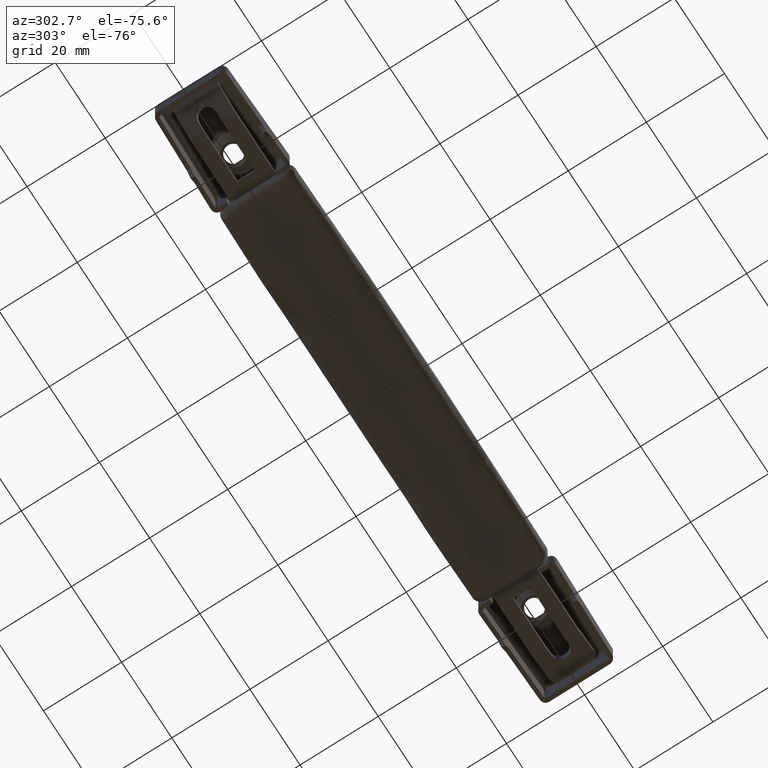
[diagram: clean part render]
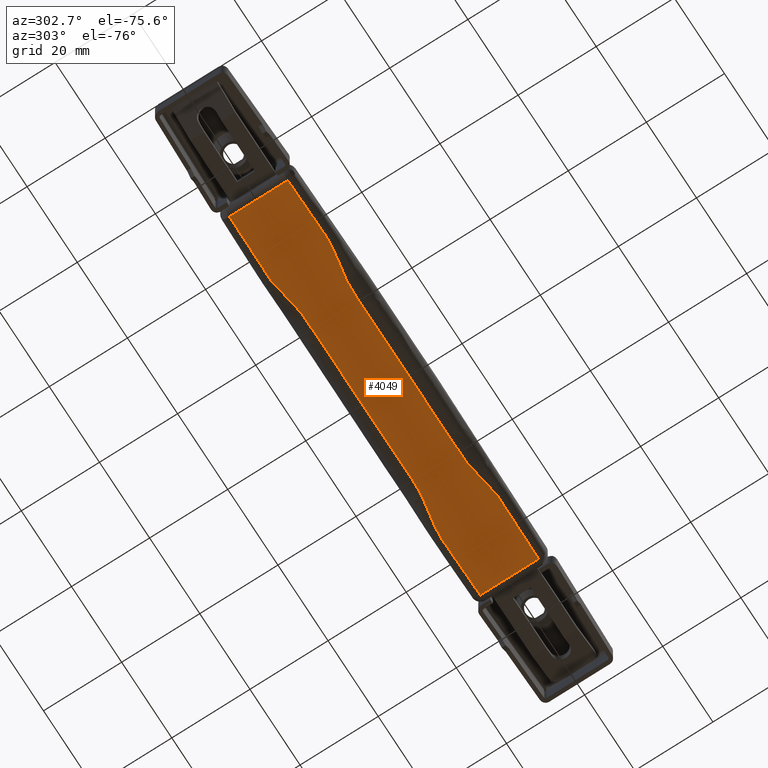
[diagram: same view with one face highlighted and labeled with its STEP entity id]
A machine part, auxiliary view. The second image highlights one B-rep face of the part: STEP entity #4049.
In plain terms, the highlighted face is a freeform B-spline surface patch.
Its self-contained STEP definition (entity closure, byte-faithful):
#2892=CARTESIAN_POINT('',(-49.999600000000001,7.453993043295670,0.0));
#2893=VERTEX_POINT('',#2892);
#3142=CARTESIAN_POINT('',(50.0,7.453984337407190,0.0));
#3143=VERTEX_POINT('',#3142);
#3157=CARTESIAN_POINT('',(-49.999600000000001,7.453993043295670,0.0));
#3158=CARTESIAN_POINT('',(-46.082928991246057,7.539208086076124,0.0));
#3159=CARTESIAN_POINT('',(-41.904920289410768,7.619755162427684,0.0));
#3160=CARTESIAN_POINT('',(-37.596150636058397,7.690959028298588,0.0));
#3161=CARTESIAN_POINT('',(-37.073887836700102,7.700303517321741,0.0));
#3162=CARTESIAN_POINT('',(-36.714884460127543,7.706293098118715,0.0));
#3163=CARTESIAN_POINT('',(-36.388609371978397,7.713118205272045,0.0));
#3164=CARTESIAN_POINT('',(-36.094864415919339,7.718813490124887,0.0));
#3165=CARTESIAN_POINT('',(-35.768481260680922,7.725904991689672,0.0));
#3166=CARTESIAN_POINT('',(-35.507222272392227,7.726733565481607,0.0));
#3167=CARTESIAN_POINT('',(-35.311391500971837,7.724147359225614,0.0));
#3168=CARTESIAN_POINT('',(-35.213453008181197,7.723104442542816,0.0));
#3169=CARTESIAN_POINT('',(-34.984992180252597,7.718221074084758,0.0));
#3170=CARTESIAN_POINT('',(-34.756585320890501,7.710679553695564,0.0));
#3171=CARTESIAN_POINT('',(-34.528339260255457,7.699441258498724,0.0));
#3172=CARTESIAN_POINT('',(-34.006561684482307,7.672844348710802,0.0));
#3173=CARTESIAN_POINT('',(-32.965474696383090,7.580821892244155,0.0));
#3174=CARTESIAN_POINT('',(-31.882361405524520,7.426980330677482,0.0));
#3175=CARTESIAN_POINT('',(-31.061045521274210,7.291449871780212,0.0));
#3176=CARTESIAN_POINT('',(-30.225589224968751,7.141651599526635,0.0));
#3177=CARTESIAN_POINT('',(-29.472122476308510,6.997029946890723,0.0));
#3178=CARTESIAN_POINT('',(-28.622701378124550,6.832335046995496,0.0));
#3179=CARTESIAN_POINT('',(-28.174198918358950,6.743842004210175,0.0));
#3180=CARTESIAN_POINT('',(-27.340855790086781,6.581991059518238,0.0));
#3181=CARTESIAN_POINT('',(-26.506560297864041,6.425768302655597,0.0));
#3182=CARTESIAN_POINT('',(-25.670180428295950,6.280859995471224,0.0));
#3183=CARTESIAN_POINT('',(-25.154200382278539,6.199495025730656,0.0));
#3184=CARTESIAN_POINT('',(-24.346601652047820,6.081898657462616,0.0));
#3185=CARTESIAN_POINT('',(-23.308368511579790,5.960830410483255,0.0));
#3186=CARTESIAN_POINT('',(-22.289246183072379,5.907132223337533,0.0));
#3187=CARTESIAN_POINT('',(-21.807818064606440,5.899904791173635,0.0));
#3188=CARTESIAN_POINT('',(-21.669133499526819,5.901023275988207,0.0));
#3189=CARTESIAN_POINT('',(-21.491600013791370,5.901136922805643,0.0));
#3190=CARTESIAN_POINT('',(-21.124333036237761,5.903951284595477,0.0));
#3191=CARTESIAN_POINT('',(-20.528531179184821,5.907147243308614,0.0));
#3192=CARTESIAN_POINT('',(-19.734811119997779,5.913922018008933,0.0));
#3193=CARTESIAN_POINT('',(-18.624793126276192,5.922465959983224,0.0));
#3194=CARTESIAN_POINT('',(-6.301015639243659,6.019578147753740,0.0));
#3195=CARTESIAN_POINT('',(6.774450400033462,6.019568517216327,0.0));
#3196=CARTESIAN_POINT('',(19.441022679260922,5.915991483347877,0.0));
#3197=CARTESIAN_POINT('',(20.818355483301030,5.905322147516966,0.0));
#3198=CARTESIAN_POINT('',(21.234608479324191,5.903284216314010,0.0));
#3199=CARTESIAN_POINT('',(21.548823581673560,5.900844039312431,0.0));
#3200=CARTESIAN_POINT('',(21.705931461410898,5.900983389515034,0.0));
#3201=CARTESIAN_POINT('',(21.860908990597689,5.899721434754014,0.0));
#3202=CARTESIAN_POINT('',(22.003601789730102,5.903740911796339,0.0));
#3203=CARTESIAN_POINT('',(22.166689980527590,5.907339446701265,0.0));
#3204=CARTESIAN_POINT('',(22.656120969256840,5.924771271434456,0.0));
#3205=CARTESIAN_POINT('',(23.568208438395519,5.989726282997066,0.0));
#3206=CARTESIAN_POINT('',(24.492032011534000,6.102596971851164,0.0));
#3207=CARTESIAN_POINT('',(25.202648926156812,6.206668482423345,0.0));
#3208=CARTESIAN_POINT('',(25.782928698988549,6.299415378628106,0.0));
#3209=CARTESIAN_POINT('',(26.699342040625730,6.460487391287681,0.0));
#3210=CARTESIAN_POINT('',(27.789897402998001,6.667638986093473,0.0));
#3211=CARTESIAN_POINT('',(28.782751314751479,6.863986031190132,0.0));
#3212=CARTESIAN_POINT('',(29.696477478700871,7.039828930505328,0.0));
#3213=CARTESIAN_POINT('',(30.450365143426950,7.182005480781927,0.0));
#3214=CARTESIAN_POINT('',(31.060972507015052,7.291309763138121,0.0));
#3215=CARTESIAN_POINT('',(31.882279570281469,7.426926464026802,0.0));
#3216=CARTESIAN_POINT('',(32.900766000446573,7.571579869977136,0.0));
#3217=CARTESIAN_POINT('',(33.941339971457040,7.667082218328652,0.0));
#3218=CARTESIAN_POINT('',(34.479152405346532,7.697481093368283,0.0));
#3219=CARTESIAN_POINT('',(34.772742914019837,7.707634959334868,0.0));
#3220=CARTESIAN_POINT('',(35.148105588652470,7.714573071183522,0.0));
#3221=CARTESIAN_POINT('',(36.045902578390908,7.717817864924758,0.0));
#3222=CARTESIAN_POINT('',(37.074220743399401,7.701819106746175,0.0));
#3223=CARTESIAN_POINT('',(38.200324134653407,7.678804217542647,0.0));
#3224=CARTESIAN_POINT('',(39.277502916643058,7.657377303141685,0.0));
#3225=CARTESIAN_POINT('',(40.599497444447927,7.633262735048892,0.0));
#3226=CARTESIAN_POINT('',(42.411063777158581,7.601653927058509,0.0));
#3227=CARTESIAN_POINT('',(44.075860088314599,7.577755609415204,0.0));
#3228=CARTESIAN_POINT('',(45.218247680821882,7.554781494443112,0.0));
#3229=CARTESIAN_POINT('',(47.062452688337103,7.517484169875009,0.0));
#3230=CARTESIAN_POINT('',(48.531232571826841,7.486000342904489,0.0));
#3231=CARTESIAN_POINT('',(50.0,7.453984337407190,0.0));
#3232=B_SPLINE_CURVE_WITH_KNOTS('',3,(#3157,#3158,#3159,#3160,#3161,#3162,#3163,#3164,#3165,#3166,#3167,#3168,#3169,#3170,#3171,#3172,#3173,#3174,#3175,#3176,#3177,#3178,#3179,#3180,#3181,#3182,#3183,#3184,#3185,#3186,#3187,#3188,#3189,#3190,#3191,#3192,#3193,#3194,#3195,#3196,#3197,#3198,#3199,#3200,#3201,#3202,#3203,#3204,#3205,#3206,#3207,#3208,#3209,#3210,#3211,#3212,#3213,#3214,#3215,#3216,#3217,#3218,#3219,#3220,#3221,#3222,#3223,#3224,#3225,#3226,#3227,#3228,#3229,#3230,#3231),.UNSPECIFIED.,.F.,.U.,(4,1,1,1,1,1,1,1,1,1,1,1,1,1,1,1,1,1,1,2,1,1,1,1,1,1,1,1,1,1,1,1,1,1,1,1,1,1,1,1,1,1,1,1,1,1,1,1,1,1,1,1,1,1,1,1,1,1,1,1,1,1,1,1,1,1,1,1,1,2,4),(0.000120689475068,11.752915614870499,12.536435497510720,12.928195235704420,13.319954973898090,13.613593843476080,13.907232713053990,14.201358195321260,14.592967761169360,14.690937065795890,14.788906370422341,14.886794296495180,15.376482434235269,15.474432670961530,15.572382907687750,16.943713564185689,18.608683742733088,18.853291253882261,19.441042693035779,21.154936936345710,22.036763703013492,22.526377742026611,23.701685787795501,24.583100227516201,25.072827663290159,25.268675008499290,27.031608916278859,28.206826020492912,28.329003423874990,28.475942462531989,28.622881501189031,28.861604362854880,29.577772947852580,30.410311235311109,31.242849522769600,32.907926097686641,67.382791068653859,70.468142765070354,70.908907293129815,71.514913371294071,71.716915397348771,71.851577416764741,71.986239436180625,72.181820289375537,72.279767965704806,72.475643957725197,73.650920272305171,75.022065895861701,75.266861945779681,75.805556513982566,76.784927782978315,78.058168115888478,79.135660858885160,79.821173030336851,80.849636503959175,81.437189517374264,81.682052006252079,83.346988871948213,84.522305929415339,84.816022748269972,84.962856593748882,85.403582147359089,85.942252789383076,87.656190134078955,88.488753573317780,89.321317012556548,90.888356200427140,92.455395396645827,94.756844274284205,95.883241721495438,100.290591420283800),.UNSPECIFIED.);
#3233=EDGE_CURVE('',#2893,#3143,#3232,.T.);
#3281=CARTESIAN_POINT('',(-49.999600000000001,-7.457993042501350,0.0));
#3282=VERTEX_POINT('',#3281);
#3468=CARTESIAN_POINT('',(50.0,-7.457984337529070,0.0));
#3469=VERTEX_POINT('',#3468);
#3470=CARTESIAN_POINT('',(50.0,-7.457984337529070,0.0));
#3471=CARTESIAN_POINT('',(46.083329006088043,-7.543200062457871,0.0));
#3472=CARTESIAN_POINT('',(41.905320318279770,-7.623747866410077,0.0));
#3473=CARTESIAN_POINT('',(37.596550677327187,-7.694952482586531,0.0));
#3474=CARTESIAN_POINT('',(37.074287879595921,-7.704297062547421,0.0));
#3475=CARTESIAN_POINT('',(36.715284504067142,-7.710286705858349,0.0));
#3476=CARTESIAN_POINT('',(36.389009417107737,-7.717111869815490,0.0));
#3477=CARTESIAN_POINT('',(36.095264462040433,-7.722807205811794,0.0));
#3478=CARTESIAN_POINT('',(35.768881308036569,-7.729898764200981,0.0));
#3479=CARTESIAN_POINT('',(35.507622319891063,-7.730727383470025,0.0));
#3480=CARTESIAN_POINT('',(35.311791548020707,-7.728141211302586,0.0));
#3481=CARTESIAN_POINT('',(35.213853141529178,-7.727099186093845,0.0));
#3482=CARTESIAN_POINT('',(34.985391767877843,-7.722210348055568,0.0));
#3483=CARTESIAN_POINT('',(34.756986592460862,-7.714685907495341,0.0));
#3484=CARTESIAN_POINT('',(34.528736489987153,-7.703406803752269,0.0));
#3485=CARTESIAN_POINT('',(34.202650168443213,-7.686998815725701,0.0));
#3486=CARTESIAN_POINT('',(33.160505142813690,-7.609761740275856,0.0));
#3487=CARTESIAN_POINT('',(32.076016493610730,-7.462655991100506,0.0));
#3488=CARTESIAN_POINT('',(31.061450824731349,-7.295500916152434,0.0));
#3489=CARTESIAN_POINT('',(30.225996063639101,-7.145613526811344,0.0));
#3490=CARTESIAN_POINT('',(29.472521425225452,-7.001028274304696,0.0));
#3491=CARTESIAN_POINT('',(28.623101571101760,-6.836328503550615,0.0));
#3492=CARTESIAN_POINT('',(28.174598512548091,-6.747839292627484,0.0));
#3493=CARTESIAN_POINT('',(27.341255913795809,-6.585983197839859,0.0));
#3494=CARTESIAN_POINT('',(26.506959591486549,-6.429770279701258,0.0));
#3495=CARTESIAN_POINT('',(25.670581302281299,-6.284843698344522,0.0));
#3496=CARTESIAN_POINT('',(25.154599723713758,-6.203495154624973,0.0));
#3497=CARTESIAN_POINT('',(24.347001122933861,-6.085891858388993,0.0));
#3498=CARTESIAN_POINT('',(23.308768492486472,-5.964826904615578,0.0));
#3499=CARTESIAN_POINT('',(22.289645938753520,-5.911128652591198,0.0));
#3500=CARTESIAN_POINT('',(21.808217775228702,-5.903900897013902,0.0));
#3501=CARTESIAN_POINT('',(21.669533229158290,-5.905019503180538,0.0));
#3502=CARTESIAN_POINT('',(21.491999743437269,-5.905133180916952,0.0));
#3503=CARTESIAN_POINT('',(21.124732766377541,-5.907947606653992,0.0));
#3504=CARTESIAN_POINT('',(20.528930909899529,-5.911143669119475,0.0));
#3505=CARTESIAN_POINT('',(19.735210851919671,-5.917918582007182,0.0));
#3506=CARTESIAN_POINT('',(18.625192858170461,-5.926462719169028,0.0));
#3507=CARTESIAN_POINT('',(6.301415411411707,-6.023576962975038,0.0));
#3508=CARTESIAN_POINT('',(-6.333273746747479,-6.023572150055511,0.0));
#3509=CARTESIAN_POINT('',(-18.852955749387771,-5.924700730488869,0.0));
#3510=CARTESIAN_POINT('',(-20.028293160857931,-5.915695760695321,0.0));
#3511=CARTESIAN_POINT('',(-20.817955081675670,-5.909231425885642,0.0));
#3512=CARTESIAN_POINT('',(-21.234208749291689,-5.907287913255294,0.0));
#3513=CARTESIAN_POINT('',(-21.548423852066719,-5.904847790973215,0.0));
#3514=CARTESIAN_POINT('',(-21.705531731803038,-5.904987168692754,0.0));
#3515=CARTESIAN_POINT('',(-21.860509261071609,-5.903725240000284,0.0));
#3516=CARTESIAN_POINT('',(-22.003202059937831,-5.907744744887882,0.0));
#3517=CARTESIAN_POINT('',(-22.166290251912191,-5.911343317230818,0.0));
#3518=CARTESIAN_POINT('',(-22.655721221774339,-5.928775156150887,0.0));
#3519=CARTESIAN_POINT('',(-23.567808725671231,-5.993730470833176,0.0));
#3520=CARTESIAN_POINT('',(-24.491632212059081,-6.106601396733417,0.0));
#3521=CARTESIAN_POINT('',(-25.202249936799792,-6.210666289793909,0.0));
#3522=CARTESIAN_POINT('',(-25.782527266371272,-6.303435865024305,0.0));
#3523=CARTESIAN_POINT('',(-26.698944614284681,-6.464467873976586,0.0));
#3524=CARTESIAN_POINT('',(-27.789492898334831,-6.671676220044976,0.0));
#3525=CARTESIAN_POINT('',(-28.782353503612530,-6.867977106385001,0.0));
#3526=CARTESIAN_POINT('',(-29.696077402212101,-7.043834880607364,0.0));
#3527=CARTESIAN_POINT('',(-30.449965326681578,-7.186013865233550,0.0));
#3528=CARTESIAN_POINT('',(-31.060575437695348,-7.295338057730672,0.0));
#3529=CARTESIAN_POINT('',(-32.010713374908953,-7.452117527607433,0.0));
#3530=CARTESIAN_POINT('',(-33.030049092458079,-7.592400002731167,0.0));
#3531=CARTESIAN_POINT('',(-34.071355071320262,-7.678538125209578,0.0));
#3532=CARTESIAN_POINT('',(-34.478749934377468,-7.701480325221857,0.0));
#3533=CARTESIAN_POINT('',(-34.772343531593748,-7.711637873092646,0.0));
#3534=CARTESIAN_POINT('',(-35.147704676242007,-7.718586650248383,0.0));
#3535=CARTESIAN_POINT('',(-36.045503437227083,-7.721815943489686,0.0));
#3536=CARTESIAN_POINT('',(-37.073820155674767,-7.705830531436167,0.0));
#3537=CARTESIAN_POINT('',(-38.199924226594483,-7.682809670257100,0.0));
#3538=CARTESIAN_POINT('',(-39.277102881236580,-7.661384141511815,0.0));
#3539=CARTESIAN_POINT('',(-40.599097413239960,-7.637269803605667,0.0));
#3540=CARTESIAN_POINT('',(-42.410663751424870,-7.605661311078714,0.0));
#3541=CARTESIAN_POINT('',(-44.075460066705972,-7.581763283442301,0.0));
#3542=CARTESIAN_POINT('',(-45.217847663172272,-7.558789367264217,0.0));
#3543=CARTESIAN_POINT('',(-47.062052677206381,-7.521492363676178,0.0));
#3544=CARTESIAN_POINT('',(-48.530832566217342,-7.490008792344348,0.0));
#3545=CARTESIAN_POINT('',(-49.999600000000001,-7.457993042501350,0.0));
#3546=B_SPLINE_CURVE_WITH_KNOTS('',3,(#3470,#3471,#3472,#3473,#3474,#3475,#3476,#3477,#3478,#3479,#3480,#3481,#3482,#3483,#3484,#3485,#3486,#3487,#3488,#3489,#3490,#3491,#3492,#3493,#3494,#3495,#3496,#3497,#3498,#3499,#3500,#3501,#3502,#3503,#3504,#3505,#3506,#3507,#3508,#3509,#3510,#3511,#3512,#3513,#3514,#3515,#3516,#3517,#3518,#3519,#3520,#3521,#3522,#3523,#3524,#3525,#3526,#3527,#3528,#3529,#3530,#3531,#3532,#3533,#3534,#3535,#3536,#3537,#3538,#3539,#3540,#3541,#3542,#3543,#3544,#3545),.UNSPECIFIED.,.F.,.U.,(4,1,1,1,1,1,1,1,1,1,1,1,1,1,1,1,1,1,1,2,1,1,1,1,1,1,1,1,1,1,1,1,1,1,1,1,1,1,1,1,1,1,1,1,1,1,1,1,1,1,1,1,1,1,1,1,1,1,1,1,1,1,1,1,1,1,1,1,1,1,2,4),(0.000120689486863,11.752915614873469,12.536435497513111,12.928195235706481,13.319954973899851,13.613593843475440,13.907232713050931,14.201358195322090,14.592967761168060,14.690937065795080,14.788906370422101,14.886794296493450,15.376482434233370,15.474432670959660,15.572382907685890,16.355996279963730,18.608683742732381,18.853291253882819,19.441042693025761,21.154936936348658,22.036763703011321,22.526377742027979,23.701685787799480,24.583100227508169,25.072827663287040,25.268675008497880,27.031608916277481,28.206826020491111,28.329003423865700,28.475942462533329,28.622881501201011,28.861604362861389,29.577772947842622,30.410311235267830,31.242849522693060,32.907926097543481,67.382791068231256,69.145849180679548,70.468142765015642,70.908907293127712,71.514913371290689,71.716915397345105,71.851577416761955,71.986239436178835,72.181820289369767,72.279767965698980,72.475643957719399,73.650920272299544,75.022065895856230,75.266861945773883,75.805556513980207,76.784927782972858,78.058168115883205,79.135660858874090,79.821173030345790,80.849636503944652,81.437189517364715,81.682052006246309,83.738780758914913,84.522305929409285,84.816022748260977,84.962856593743979,85.403582147354555,85.942252789378529,87.656190134072418,88.488753573311286,89.321317012550196,90.888356200420745,92.455395396639304,94.756844274188836,95.883241721371988,100.290591420275800),.UNSPECIFIED.);
#3547=EDGE_CURVE('',#3469,#3282,#3546,.T.);
#3650=CARTESIAN_POINT('',(-49.999600000000001,-7.457993042501350,0.0));
#3651=CARTESIAN_POINT('',(-49.999600000000001,7.453993043295670,0.0));
#3652=QUASI_UNIFORM_CURVE('',1,(#3650,#3651),.UNSPECIFIED.,.F.,.U.);
#3653=EDGE_CURVE('',#3282,#2893,#3652,.T.);
#4034=CARTESIAN_POINT('',(-54.994579826181393,8.478388659799030,0.0));
#4035=CARTESIAN_POINT('',(54.994982508379650,8.478388659799030,0.0));
#4036=CARTESIAN_POINT('',(-54.994579826181393,-8.482382159164049,0.0));
#4037=CARTESIAN_POINT('',(54.994982508379650,-8.482382159164049,0.0));
#4038=B_SPLINE_SURFACE_WITH_KNOTS('',1,1,((#4034,#4036),(#4035,#4037)),.UNSPECIFIED.,.F.,.F.,.U.,(2,2),(2,2),(0.0,109.989562334561000),(0.0,16.960770818963081),.UNSPECIFIED.);
#4039=ORIENTED_EDGE('',*,*,#3653,.T.);
#4040=ORIENTED_EDGE('',*,*,#3233,.T.);
#4041=CARTESIAN_POINT('',(50.0,7.453984337407190,0.0));
#4042=CARTESIAN_POINT('',(50.0,-7.457984337529070,0.0));
#4043=QUASI_UNIFORM_CURVE('',1,(#4041,#4042),.UNSPECIFIED.,.F.,.U.);
#4044=EDGE_CURVE('',#3143,#3469,#4043,.T.);
#4045=ORIENTED_EDGE('',*,*,#4044,.T.);
#4046=ORIENTED_EDGE('',*,*,#3547,.T.);
#4047=EDGE_LOOP('',(#4039,#4040,#4045,#4046));
#4048=FACE_OUTER_BOUND('',#4047,.T.);
#4049=ADVANCED_FACE('',(#4048),#4038,.T.);